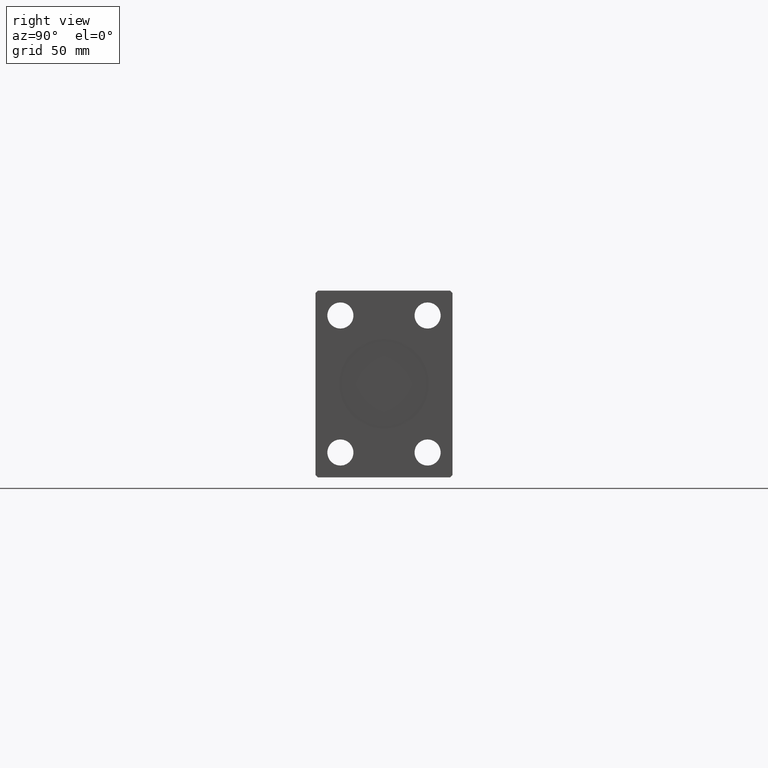
[diagram: clean part render]
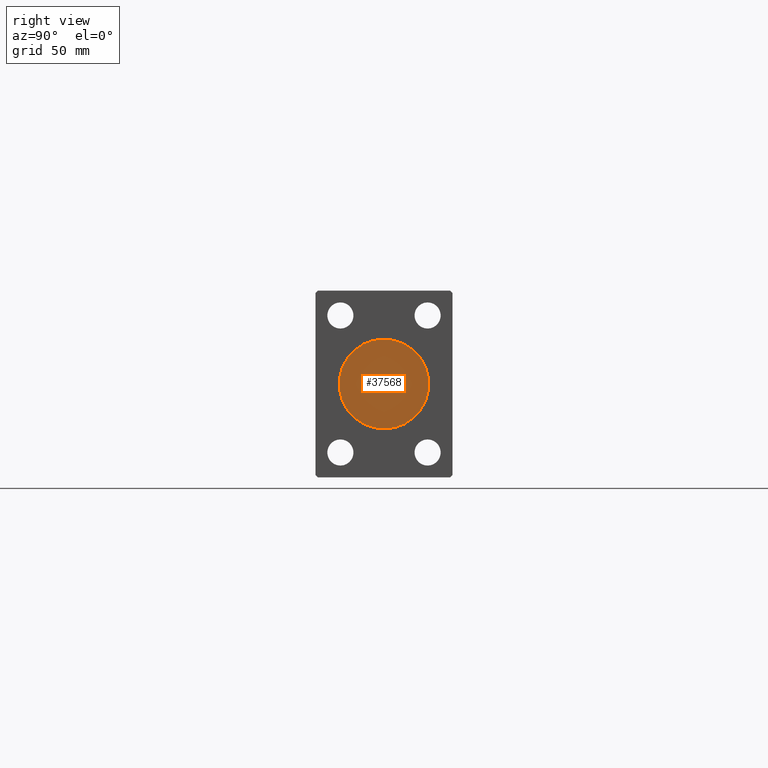
[diagram: same view with one face highlighted and labeled with its STEP entity id]
A machine part, right view. The second image highlights one B-rep face of the part: STEP entity #37568.
In plain terms, the highlighted planar face has unit normal (1, 0, 0).
Its self-contained STEP definition (entity closure, byte-faithful):
#1261 = CARTESIAN_POINT ( 'NONE',  ( 264.8000000000000114, 0.000000000000000000, 0.000000000000000000 ) ) ;
#2000 = DIRECTION ( 'NONE',  ( 1.000000000000000000, 0.000000000000000000, 0.000000000000000000 ) ) ;
#5964 = ORIENTED_EDGE ( 'NONE', *, *, #6430, .T. ) ;
#6430 = EDGE_CURVE ( 'NONE', #15871, #23098, #41006, .T. ) ;
#8286 = AXIS2_PLACEMENT_3D ( 'NONE', #30617, #40646, #20114 ) ;
#12686 = CARTESIAN_POINT ( 'NONE',  ( 264.8000000000000114, 0.000000000000000000, 0.000000000000000000 ) ) ;
#13178 = EDGE_CURVE ( 'NONE', #23098, #15871, #28988, .T. ) ;
#15871 = VERTEX_POINT ( 'NONE', #17647 ) ;
#16529 = AXIS2_PLACEMENT_3D ( 'NONE', #12686, #2000, #36141 ) ;
#17647 = CARTESIAN_POINT ( 'NONE',  ( 264.8000000000000114, 0.000000000000000000, -18.00000000000000000 ) ) ;
#19424 = CARTESIAN_POINT ( 'NONE',  ( 264.8000000000000114, 2.204364238465235428E-15, 18.00000000000000000 ) ) ;
#20114 = DIRECTION ( 'NONE',  ( 0.000000000000000000, 0.000000000000000000, -1.000000000000000000 ) ) ;
#23098 = VERTEX_POINT ( 'NONE', #19424 ) ;
#25710 = ORIENTED_EDGE ( 'NONE', *, *, #13178, .T. ) ;
#28897 = AXIS2_PLACEMENT_3D ( 'NONE', #1261, #32487, #42297 ) ;
#28988 = CIRCLE ( 'NONE', #8286, 18.00000000000000000 ) ;
#30617 = CARTESIAN_POINT ( 'NONE',  ( 264.8000000000000114, 0.000000000000000000, 0.000000000000000000 ) ) ;
#32358 = PLANE ( 'NONE',  #16529 ) ;
#32487 = DIRECTION ( 'NONE',  ( 1.000000000000000000, 0.000000000000000000, 0.000000000000000000 ) ) ;
#32783 = FACE_OUTER_BOUND ( 'NONE', #37553, .T. ) ;
#36141 = DIRECTION ( 'NONE',  ( 0.000000000000000000, 0.000000000000000000, -1.000000000000000000 ) ) ;
#37553 = EDGE_LOOP ( 'NONE', ( #5964, #25710 ) ) ;
#37568 = ADVANCED_FACE ( 'NONE', ( #32783 ), #32358, .T. ) ;
#40646 = DIRECTION ( 'NONE',  ( 1.000000000000000000, 0.000000000000000000, 0.000000000000000000 ) ) ;
#41006 = CIRCLE ( 'NONE', #28897, 18.00000000000000000 ) ;
#42297 = DIRECTION ( 'NONE',  ( 0.000000000000000000, 0.000000000000000000, -1.000000000000000000 ) ) ;